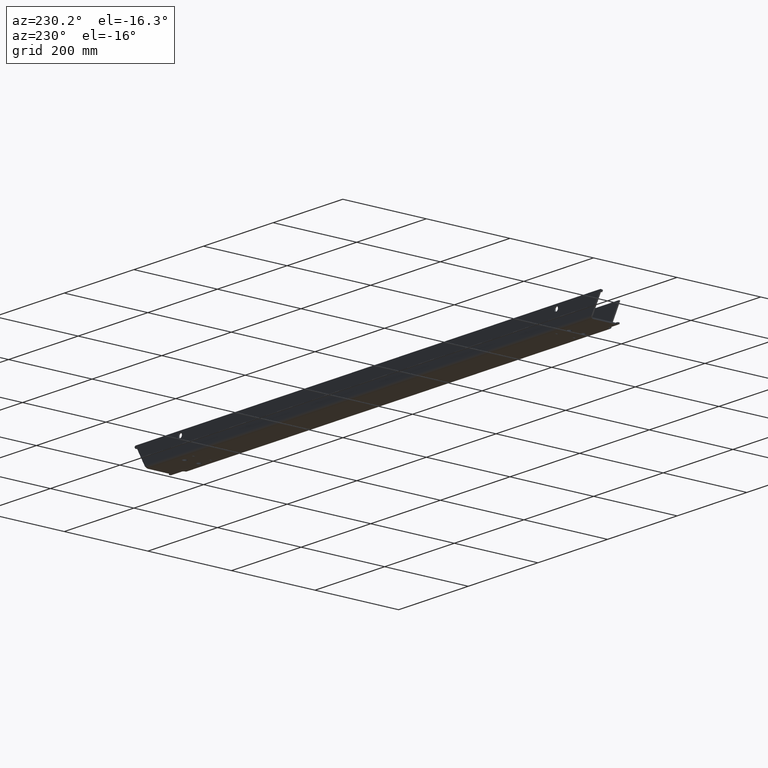
[diagram: clean part render]
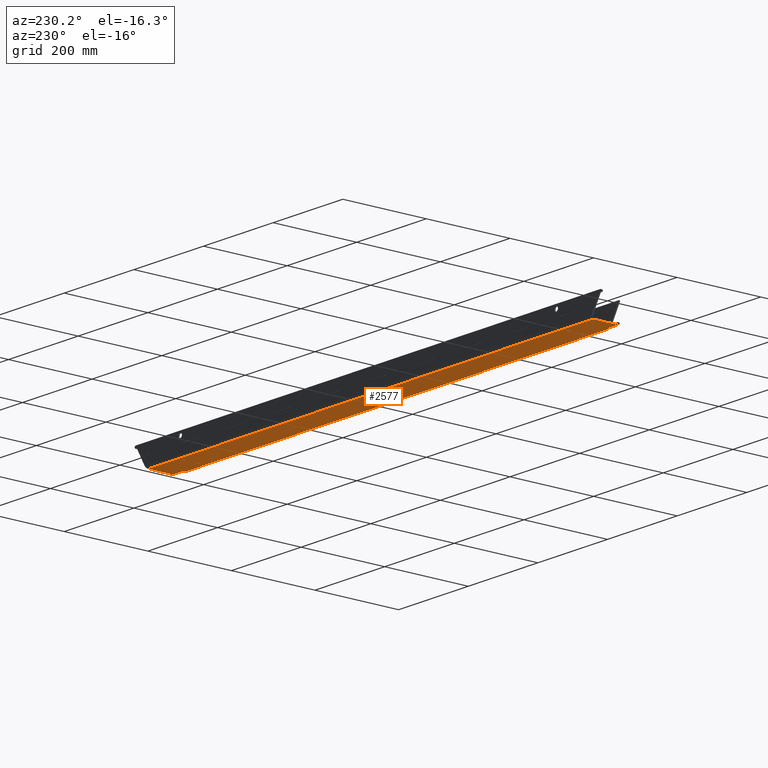
[diagram: same view with one face highlighted and labeled with its STEP entity id]
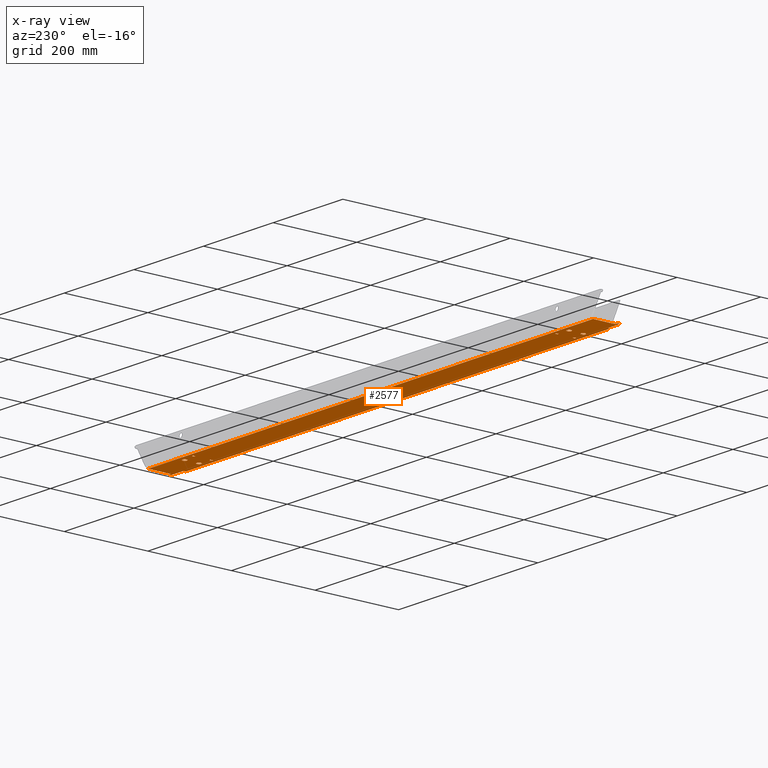
[diagram: x-ray of the same camera — body ghosted, the highlighted face saturated]
A machine part, auxiliary view. The second image highlights one B-rep face of the part: STEP entity #2577.
The next image is the same camera in x-ray: the body ghosted, the highlighted face saturated — about 0% of this face is hidden behind the body in this view.
In plain terms, the highlighted planar face has unit normal (-0, 0, 1).
Its self-contained STEP definition (entity closure, byte-faithful):
#1 = LINE ( 'NONE', #1543, #1769 ) ;
#8 = EDGE_CURVE ( 'NONE', #581, #631, #318, .T. ) ;
#9 = LINE ( 'NONE', #2284, #2249 ) ;
#10 = DIRECTION ( 'NONE',  ( 1.000000000000000000, 0.000000000000000000, 0.000000000000000000 ) ) ;
#15 = CARTESIAN_POINT ( 'NONE',  ( 644.8674066218874259, -1093.805262667903662, -1260.499999999999773 ) ) ;
#20 = EDGE_LOOP ( 'NONE', ( #1880, #913, #72, #481 ) ) ;
#26 = VERTEX_POINT ( 'NONE', #2002 ) ;
#36 = LINE ( 'NONE', #51, #2113 ) ;
#39 = LINE ( 'NONE', #1428, #812 ) ;
#44 = EDGE_CURVE ( 'NONE', #1718, #2247, #978, .T. ) ;
#51 = CARTESIAN_POINT ( 'NONE',  ( 1216.949570326560661, -1163.805262667903662, -1260.499999999999773 ) ) ;
#55 = CARTESIAN_POINT ( 'NONE',  ( 608.4639947775447126, -1163.805262667903662, -1260.499999999999773 ) ) ;
#59 = EDGE_CURVE ( 'NONE', #400, #364, #2617, .T. ) ;
#60 = VERTEX_POINT ( 'NONE', #2172 ) ;
#68 = DIRECTION ( 'NONE',  ( -1.000000000000000000, -0.000000000000000000, -0.000000000000000000 ) ) ;
#72 = ORIENTED_EDGE ( 'NONE', *, *, #1324, .F. ) ;
#89 = AXIS2_PLACEMENT_3D ( 'NONE', #290, #1711, #1130 ) ;
#96 = LINE ( 'NONE', #1332, #2314 ) ;
#103 = VERTEX_POINT ( 'NONE', #1007 ) ;
#141 = DIRECTION ( 'NONE',  ( 1.000000000000000000, 0.000000000000000000, 0.000000000000000000 ) ) ;
#151 = CARTESIAN_POINT ( 'NONE',  ( 1090.972523324353915, -1107.805262667903889, -1260.499999999999773 ) ) ;
#152 = VERTEX_POINT ( 'NONE', #2502 ) ;
#153 = AXIS2_PLACEMENT_3D ( 'NONE', #962, #505, #2403 ) ;
#154 = DIRECTION ( 'NONE',  ( 1.000000000000000000, 0.000000000000000000, 0.000000000000000000 ) ) ;
#164 = DIRECTION ( 'NONE',  ( -0.000000000000000000, 0.000000000000000000, 1.000000000000000000 ) ) ;
#181 = DIRECTION ( 'NONE',  ( 0.000000000000000000, 1.000000000000000000, -0.000000000000000000 ) ) ;
#188 = VERTEX_POINT ( 'NONE', #1223 ) ;
#189 = LINE ( 'NONE', #1266, #1389 ) ;
#190 = CARTESIAN_POINT ( 'NONE',  ( -638.8674066218875396, -1153.805262667903662, -1260.499999999999773 ) ) ;
#194 = VERTEX_POINT ( 'NONE', #1196 ) ;
#205 = EDGE_CURVE ( 'NONE', #2174, #2145, #39, .T. ) ;
#214 = CARTESIAN_POINT ( 'NONE',  ( -552.1231010869422562, -1148.805262667896613, -1260.499999999999545 ) ) ;
#221 = VERTEX_POINT ( 'NONE', #2443 ) ;
#225 = DIRECTION ( 'NONE',  ( -0.000000000000000000, 0.000000000000000000, 1.000000000000000000 ) ) ;
#249 = ORIENTED_EDGE ( 'NONE', *, *, #448, .T. ) ;
#259 = EDGE_CURVE ( 'NONE', #1335, #1607, #96, .T. ) ;
#265 = DIRECTION ( 'NONE',  ( -1.000000000000000000, -0.000000000000000000, -0.000000000000000000 ) ) ;
#289 = VECTOR ( 'NONE', #1996, 1000.000000000000000 ) ;
#290 = CARTESIAN_POINT ( 'NONE',  ( -552.1231010869422562, -1114.805262667903662, -1260.499999999999545 ) ) ;
#291 = VERTEX_POINT ( 'NONE', #1955 ) ;
#318 = CIRCLE ( 'NONE', #153, 5.249999999999976907 ) ;
#345 = VERTEX_POINT ( 'NONE', #1347 ) ;
#351 = VECTOR ( 'NONE', #359, 1000.000000000000000 ) ;
#358 = EDGE_CURVE ( 'NONE', #726, #103, #467, .T. ) ;
#359 = DIRECTION ( 'NONE',  ( 0.000000000000000000, 1.000000000000000000, -0.000000000000000000 ) ) ;
#364 = VERTEX_POINT ( 'NONE', #1118 ) ;
#395 = EDGE_CURVE ( 'NONE', #2187, #1278, #501, .T. ) ;
#400 = VERTEX_POINT ( 'NONE', #1596 ) ;
#408 = ORIENTED_EDGE ( 'NONE', *, *, #8, .T. ) ;
#413 = ORIENTED_EDGE ( 'NONE', *, *, #2663, .F. ) ;
#419 = VECTOR ( 'NONE', #2188, 1000.000000000000000 ) ;
#423 = CIRCLE ( 'NONE', #2073, 5.249999999999976907 ) ;
#434 = FACE_BOUND ( 'NONE', #1173, .T. ) ;
#447 = EDGE_LOOP ( 'NONE', ( #937, #1094 ) ) ;
#448 = EDGE_CURVE ( 'NONE', #2145, #60, #2425, .T. ) ;
#452 = VERTEX_POINT ( 'NONE', #2438 ) ;
#453 = VECTOR ( 'NONE', #1038, 1000.000000000000000 ) ;
#467 = LINE ( 'NONE', #1306, #2618 ) ;
#472 = CARTESIAN_POINT ( 'NONE',  ( 519.9000000000004320, -1155.805262667903889, -1260.499999999999773 ) ) ;
#477 = AXIS2_PLACEMENT_3D ( 'NONE', #1188, #1407, #1622 ) ;
#481 = ORIENTED_EDGE ( 'NONE', *, *, #2623, .F. ) ;
#490 = CARTESIAN_POINT ( 'NONE',  ( 643.8674066218874259, -1158.805262667903435, -1260.499999999999773 ) ) ;
#492 = EDGE_CURVE ( 'NONE', #2116, #2351, #1488, .T. ) ;
#497 = LINE ( 'NONE', #2311, #1049 ) ;
#500 = CARTESIAN_POINT ( 'NONE',  ( -613.4639947775447126, -1163.805262667903662, -1260.499999999999773 ) ) ;
#501 = CIRCLE ( 'NONE', #1207, 5.249999999999976907 ) ;
#505 = DIRECTION ( 'NONE',  ( -0.000000000000000000, 0.000000000000000000, 1.000000000000000000 ) ) ;
#523 = VECTOR ( 'NONE', #748, 1000.000000000000000 ) ;
#525 = ORIENTED_EDGE ( 'NONE', *, *, #492, .F. ) ;
#542 = DIRECTION ( 'NONE',  ( -0.000000000000000000, 0.000000000000000000, 1.000000000000000000 ) ) ;
#549 = LINE ( 'NONE', #566, #351 ) ;
#566 = CARTESIAN_POINT ( 'NONE',  ( 638.8674066218876533, -1093.805262667903662, -1260.499999999999773 ) ) ;
#568 = CIRCLE ( 'NONE', #89, 5.249999999999976907 ) ;
#569 = CARTESIAN_POINT ( 'NONE',  ( -519.9000000000004320, -1113.805262667903662, -1260.499999999999773 ) ) ;
#572 = CARTESIAN_POINT ( 'NONE',  ( -1284.683459398313516, -1099.805262667903662, -1260.499999999999773 ) ) ;
#581 = VERTEX_POINT ( 'NONE', #1652 ) ;
#586 = EDGE_CURVE ( 'NONE', #940, #2004, #1, .T. ) ;
#587 = CARTESIAN_POINT ( 'NONE',  ( -552.1231010869422562, -1148.805262667896613, -1260.499999999999545 ) ) ;
#588 = VECTOR ( 'NONE', #141, 1000.000000000000000 ) ;
#598 = FACE_BOUND ( 'NONE', #1937, .T. ) ;
#605 = CARTESIAN_POINT ( 'NONE',  ( 1090.972523324353915, -1107.805262667903889, -1260.499999999999773 ) ) ;
#607 = CIRCLE ( 'NONE', #742, 1.000000000000000888 ) ;
#631 = VERTEX_POINT ( 'NONE', #2126 ) ;
#643 = FACE_BOUND ( 'NONE', #648, .T. ) ;
#644 = VERTEX_POINT ( 'NONE', #55 ) ;
#647 = CARTESIAN_POINT ( 'NONE',  ( -546.8731010869423699, -1148.805262667896613, -1260.499999999999545 ) ) ;
#648 = EDGE_LOOP ( 'NONE', ( #525, #792, #2655, #1326 ) ) ;
#649 = AXIS2_PLACEMENT_3D ( 'NONE', #214, #225, #10 ) ;
#652 = LINE ( 'NONE', #15, #2681 ) ;
#661 = ORIENTED_EDGE ( 'NONE', *, *, #395, .T. ) ;
#666 = DIRECTION ( 'NONE',  ( 1.000000000000000000, 0.000000000000000000, 0.000000000000000000 ) ) ;
#675 = VERTEX_POINT ( 'NONE', #930 ) ;
#682 = EDGE_LOOP ( 'NONE', ( #408, #749 ) ) ;
#683 = VECTOR ( 'NONE', #1796, 1000.000000000000000 ) ;
#689 = EDGE_CURVE ( 'NONE', #1982, #2174, #1530, .T. ) ;
#713 = EDGE_CURVE ( 'NONE', #194, #726, #1814, .T. ) ;
#717 = CARTESIAN_POINT ( 'NONE',  ( 613.4639947775447126, -1158.805262667903207, -1260.499999999999773 ) ) ;
#726 = VERTEX_POINT ( 'NONE', #2152 ) ;
#740 = ORIENTED_EDGE ( 'NONE', *, *, #1368, .F. ) ;
#742 = AXIS2_PLACEMENT_3D ( 'NONE', #1991, #1374, #1817 ) ;
#745 = CARTESIAN_POINT ( 'NONE',  ( 523.1000000000004775, -1093.805262667903662, -1260.499999999999773 ) ) ;
#748 = DIRECTION ( 'NONE',  ( -0.000000000000000000, -1.000000000000000000, 0.000000000000000000 ) ) ;
#749 = ORIENTED_EDGE ( 'NONE', *, *, #1339, .T. ) ;
#757 = DIRECTION ( 'NONE',  ( 1.000000000000000000, 0.000000000000000000, 0.000000000000000000 ) ) ;
#762 = EDGE_LOOP ( 'NONE', ( #1658, #2027, #1101, #1668 ) ) ;
#767 = EDGE_CURVE ( 'NONE', #2330, #644, #1729, .T. ) ;
#769 = DIRECTION ( 'NONE',  ( 1.000000000000000000, 0.000000000000000000, 0.000000000000000000 ) ) ;
#772 = EDGE_CURVE ( 'NONE', #1486, #452, #1899, .T. ) ;
#785 = DIRECTION ( 'NONE',  ( 1.000000000000000000, 0.000000000000000000, 0.000000000000000000 ) ) ;
#788 = CARTESIAN_POINT ( 'NONE',  ( 1090.972523324353915, -1155.805262667903889, -1260.499999999999773 ) ) ;
#792 = ORIENTED_EDGE ( 'NONE', *, *, #895, .F. ) ;
#799 = CARTESIAN_POINT ( 'NONE',  ( 519.9000000000004320, -1093.805262667903662, -1260.499999999999773 ) ) ;
#801 = DIRECTION ( 'NONE',  ( 0.000000000000000000, 1.000000000000000000, -0.000000000000000000 ) ) ;
#807 = DIRECTION ( 'NONE',  ( -0.000000000000000000, 0.000000000000000000, 1.000000000000000000 ) ) ;
#812 = VECTOR ( 'NONE', #2040, 1000.000000000000000 ) ;
#813 = DIRECTION ( 'NONE',  ( 1.000000000000000000, 0.000000000000000000, 0.000000000000000000 ) ) ;
#817 = PLANE ( 'NONE',  #1575 ) ;
#832 = DIRECTION ( 'NONE',  ( -1.000000000000000000, -0.000000000000000000, -0.000000000000000000 ) ) ;
#840 = FACE_BOUND ( 'NONE', #447, .T. ) ;
#845 = EDGE_CURVE ( 'NONE', #152, #221, #1204, .T. ) ;
#878 = DIRECTION ( 'NONE',  ( 0.000000000000000000, 1.000000000000000000, -0.000000000000000000 ) ) ;
#881 = ORIENTED_EDGE ( 'NONE', *, *, #1110, .T. ) ;
#884 = EDGE_CURVE ( 'NONE', #2247, #345, #2021, .T. ) ;
#894 = ORIENTED_EDGE ( 'NONE', *, *, #933, .T. ) ;
#895 = EDGE_CURVE ( 'NONE', #291, #2116, #2427, .T. ) ;
#903 = DIRECTION ( 'NONE',  ( 1.000000000000000000, 0.000000000000000000, 0.000000000000000000 ) ) ;
#913 = ORIENTED_EDGE ( 'NONE', *, *, #259, .F. ) ;
#915 = AXIS2_PLACEMENT_3D ( 'NONE', #2013, #2656, #813 ) ;
#930 = CARTESIAN_POINT ( 'NONE',  ( -644.8674066218873122, -1157.805262667903662, -1260.499999999999773 ) ) ;
#933 = EDGE_CURVE ( 'NONE', #1471, #2330, #189, .T. ) ;
#937 = ORIENTED_EDGE ( 'NONE', *, *, #2362, .T. ) ;
#940 = VERTEX_POINT ( 'NONE', #2070 ) ;
#944 = ORIENTED_EDGE ( 'NONE', *, *, #1618, .T. ) ;
#952 = CARTESIAN_POINT ( 'NONE',  ( -557.3731010869422562, -1148.805262667896613, -1260.499999999999545 ) ) ;
#962 = CARTESIAN_POINT ( 'NONE',  ( 552.1231010869422562, -1148.805262667896613, -1260.499999999999545 ) ) ;
#963 = VECTOR ( 'NONE', #181, 1000.000000000000000 ) ;
#969 = LINE ( 'NONE', #2593, #419 ) ;
#973 = DIRECTION ( 'NONE',  ( 1.000000000000000000, 0.000000000000000000, 0.000000000000000000 ) ) ;
#974 = CARTESIAN_POINT ( 'NONE',  ( 1090.972523324353915, -1113.805262667903662, -1260.499999999999773 ) ) ;
#977 = LINE ( 'NONE', #605, #1042 ) ;
#978 = LINE ( 'NONE', #745, #1755 ) ;
#992 = LINE ( 'NONE', #1841, #1224 ) ;
#1000 = DIRECTION ( 'NONE',  ( 1.000000000000000000, 0.000000000000000000, 0.000000000000000000 ) ) ;
#1001 = CARTESIAN_POINT ( 'NONE',  ( 519.9000000000004320, -1107.805262667903889, -1260.499999999999773 ) ) ;
#1004 = CIRCLE ( 'NONE', #1343, 1.000000000000000888 ) ;
#1005 = LINE ( 'NONE', #788, #1398 ) ;
#1007 = CARTESIAN_POINT ( 'NONE',  ( -643.8674066218874259, -1158.805262667903435, -1260.499999999999773 ) ) ;
#1022 = FACE_OUTER_BOUND ( 'NONE', #2433, .T. ) ;
#1028 = EDGE_CURVE ( 'NONE', #2004, #400, #9, .T. ) ;
#1038 = DIRECTION ( 'NONE',  ( 1.000000000000000000, 0.000000000000000000, 0.000000000000000000 ) ) ;
#1042 = VECTOR ( 'NONE', #1588, 1000.000000000000000 ) ;
#1049 = VECTOR ( 'NONE', #2525, 1000.000000000000000 ) ;
#1060 = DIRECTION ( 'NONE',  ( 0.000000000000000000, 1.000000000000000000, -0.000000000000000000 ) ) ;
#1085 = CIRCLE ( 'NONE', #915, 1.000000000000000888 ) ;
#1094 = ORIENTED_EDGE ( 'NONE', *, *, #1566, .T. ) ;
#1101 = ORIENTED_EDGE ( 'NONE', *, *, #59, .F. ) ;
#1110 = EDGE_CURVE ( 'NONE', #644, #194, #36, .T. ) ;
#1111 = ORIENTED_EDGE ( 'NONE', *, *, #1601, .F. ) ;
#1118 = CARTESIAN_POINT ( 'NONE',  ( 523.1000000000004775, -1149.805262667903889, -1260.499999999999773 ) ) ;
#1123 = VECTOR ( 'NONE', #903, 1000.000000000000000 ) ;
#1130 = DIRECTION ( 'NONE',  ( 1.000000000000000000, 0.000000000000000000, 0.000000000000000000 ) ) ;
#1139 = CIRCLE ( 'NONE', #477, 1.000000000000000888 ) ;
#1171 = CARTESIAN_POINT ( 'NONE',  ( -546.8731010869423699, -1114.805262667903662, -1260.499999999999545 ) ) ;
#1173 = EDGE_LOOP ( 'NONE', ( #1825, #1404, #1111, #2333 ) ) ;
#1177 = ORIENTED_EDGE ( 'NONE', *, *, #2063, .T. ) ;
#1188 = CARTESIAN_POINT ( 'NONE',  ( 643.8674066218874259, -1154.805262667903435, -1260.499999999999545 ) ) ;
#1194 = VERTEX_POINT ( 'NONE', #569 ) ;
#1195 = DIRECTION ( 'NONE',  ( -1.000000000000000000, -0.000000000000000000, -0.000000000000000000 ) ) ;
#1196 = CARTESIAN_POINT ( 'NONE',  ( -608.4639947775447126, -1163.805262667903662, -1260.499999999999773 ) ) ;
#1204 = LINE ( 'NONE', #2439, #289 ) ;
#1207 = AXIS2_PLACEMENT_3D ( 'NONE', #587, #542, #973 ) ;
#1210 = VERTEX_POINT ( 'NONE', #1171 ) ;
#1211 = DIRECTION ( 'NONE',  ( -0.000000000000000000, -0.000000000000000000, 1.000000000000000000 ) ) ;
#1218 = CARTESIAN_POINT ( 'NONE',  ( -638.8674066218875396, -1099.805262667903662, -1260.499999999999773 ) ) ;
#1223 = CARTESIAN_POINT ( 'NONE',  ( -519.9000000000004320, -1107.805262667903889, -1260.499999999999773 ) ) ;
#1224 = VECTOR ( 'NONE', #801, 1000.000000000000000 ) ;
#1233 = CARTESIAN_POINT ( 'NONE',  ( 523.1000000000004775, -1113.805262667903662, -1260.499999999999773 ) ) ;
#1237 = EDGE_CURVE ( 'NONE', #1982, #1239, #607, .T. ) ;
#1239 = VERTEX_POINT ( 'NONE', #2620 ) ;
#1241 = ORIENTED_EDGE ( 'NONE', *, *, #689, .T. ) ;
#1247 = EDGE_CURVE ( 'NONE', #2351, #1337, #969, .T. ) ;
#1266 = CARTESIAN_POINT ( 'NONE',  ( 1090.972523324353915, -1158.805262667903435, -1260.499999999999773 ) ) ;
#1273 = ORIENTED_EDGE ( 'NONE', *, *, #358, .T. ) ;
#1278 = VERTEX_POINT ( 'NONE', #952 ) ;
#1283 = CARTESIAN_POINT ( 'NONE',  ( 552.1231010869422562, -1148.805262667896613, -1260.499999999999545 ) ) ;
#1285 = VECTOR ( 'NONE', #1624, 1000.000000000000000 ) ;
#1306 = CARTESIAN_POINT ( 'NONE',  ( 1090.972523324353915, -1158.805262667903435, -1260.499999999999773 ) ) ;
#1309 = DIRECTION ( 'NONE',  ( -0.000000000000000000, 0.000000000000000000, 1.000000000000000000 ) ) ;
#1316 = DIRECTION ( 'NONE',  ( -1.000000000000000000, 0.000000000000000000, -0.000000000000000000 ) ) ;
#1324 = EDGE_CURVE ( 'NONE', #1194, #1335, #2518, .T. ) ;
#1326 = ORIENTED_EDGE ( 'NONE', *, *, #1247, .F. ) ;
#1332 = CARTESIAN_POINT ( 'NONE',  ( -523.1000000000005912, -1093.805262667903662, -1260.499999999999773 ) ) ;
#1333 = DIRECTION ( 'NONE',  ( 1.000000000000000000, 0.000000000000000000, 0.000000000000000000 ) ) ;
#1335 = VERTEX_POINT ( 'NONE', #1903 ) ;
#1337 = VERTEX_POINT ( 'NONE', #2650 ) ;
#1339 = EDGE_CURVE ( 'NONE', #631, #581, #2288, .T. ) ;
#1343 = AXIS2_PLACEMENT_3D ( 'NONE', #2115, #1211, #2276 ) ;
#1347 = CARTESIAN_POINT ( 'NONE',  ( 519.9000000000004320, -1113.805262667903662, -1260.499999999999773 ) ) ;
#1368 = EDGE_CURVE ( 'NONE', #675, #103, #1004, .T. ) ;
#1374 = DIRECTION ( 'NONE',  ( -0.000000000000000000, -0.000000000000000000, 1.000000000000000000 ) ) ;
#1389 = VECTOR ( 'NONE', #832, 1000.000000000000000 ) ;
#1398 = VECTOR ( 'NONE', #1195, 1000.000000000000000 ) ;
#1404 = ORIENTED_EDGE ( 'NONE', *, *, #44, .F. ) ;
#1407 = DIRECTION ( 'NONE',  ( 0.000000000000000000, 0.000000000000000000, -1.000000000000000000 ) ) ;
#1428 = CARTESIAN_POINT ( 'NONE',  ( -638.8674066218875396, -1093.805262667903662, -1260.499999999999773 ) ) ;
#1433 = ORIENTED_EDGE ( 'NONE', *, *, #767, .T. ) ;
#1444 = VERTEX_POINT ( 'NONE', #2546 ) ;
#1445 = CARTESIAN_POINT ( 'NONE',  ( -523.1000000000005912, -1093.805262667903662, -1260.499999999999773 ) ) ;
#1450 = CARTESIAN_POINT ( 'NONE',  ( 523.1000000000004775, -1107.805262667903889, -1260.499999999999773 ) ) ;
#1471 = VERTEX_POINT ( 'NONE', #490 ) ;
#1481 = ORIENTED_EDGE ( 'NONE', *, *, #772, .T. ) ;
#1486 = VERTEX_POINT ( 'NONE', #1984 ) ;
#1488 = LINE ( 'NONE', #2255, #453 ) ;
#1530 = LINE ( 'NONE', #2168, #1123 ) ;
#1533 = ORIENTED_EDGE ( 'NONE', *, *, #2267, .T. ) ;
#1543 = CARTESIAN_POINT ( 'NONE',  ( 1090.972523324353915, -1155.805262667903889, -1260.499999999999773 ) ) ;
#1544 = CARTESIAN_POINT ( 'NONE',  ( 644.8674066218873122, -1154.805262667903435, -1260.499999999999773 ) ) ;
#1566 = EDGE_CURVE ( 'NONE', #1444, #1210, #423, .T. ) ;
#1575 = AXIS2_PLACEMENT_3D ( 'NONE', #1667, #807, #1635 ) ;
#1588 = DIRECTION ( 'NONE',  ( 1.000000000000000000, 0.000000000000000000, 0.000000000000000000 ) ) ;
#1596 = CARTESIAN_POINT ( 'NONE',  ( 519.9000000000004320, -1149.805262667903889, -1260.499999999999773 ) ) ;
#1601 = EDGE_CURVE ( 'NONE', #2077, #1718, #977, .T. ) ;
#1603 = CARTESIAN_POINT ( 'NONE',  ( -519.9000000000004320, -1093.805262667903662, -1260.499999999999773 ) ) ;
#1607 = VERTEX_POINT ( 'NONE', #2256 ) ;
#1610 = CARTESIAN_POINT ( 'NONE',  ( 613.4639947775447126, -1163.805262667903435, -1260.499999999999773 ) ) ;
#1618 = EDGE_CURVE ( 'NONE', #675, #1239, #992, .T. ) ;
#1622 = DIRECTION ( 'NONE',  ( 1.000000000000000000, 0.000000000000000000, 0.000000000000000000 ) ) ;
#1624 = DIRECTION ( 'NONE',  ( 1.000000000000000000, -0.000000000000000000, 0.000000000000000000 ) ) ;
#1634 = DIRECTION ( 'NONE',  ( -0.000000000000000000, 0.000000000000000000, 1.000000000000000000 ) ) ;
#1635 = DIRECTION ( 'NONE',  ( 1.000000000000000000, 0.000000000000000000, 0.000000000000000000 ) ) ;
#1645 = EDGE_CURVE ( 'NONE', #1337, #291, #1005, .T. ) ;
#1652 = CARTESIAN_POINT ( 'NONE',  ( 557.3731010869422562, -1148.805262667896613, -1260.499999999999545 ) ) ;
#1658 = ORIENTED_EDGE ( 'NONE', *, *, #586, .F. ) ;
#1667 = CARTESIAN_POINT ( 'NONE',  ( 1090.972523324353915, -1093.805262667903662, -1260.499999999999773 ) ) ;
#1668 = ORIENTED_EDGE ( 'NONE', *, *, #1028, .F. ) ;
#1670 = EDGE_CURVE ( 'NONE', #26, #1471, #1085, .T. ) ;
#1683 = ORIENTED_EDGE ( 'NONE', *, *, #1745, .F. ) ;
#1711 = DIRECTION ( 'NONE',  ( -0.000000000000000000, 0.000000000000000000, 1.000000000000000000 ) ) ;
#1718 = VERTEX_POINT ( 'NONE', #1450 ) ;
#1729 = CIRCLE ( 'NONE', #2416, 5.000000000000004441 ) ;
#1735 = CIRCLE ( 'NONE', #649, 5.249999999999976907 ) ;
#1745 = EDGE_CURVE ( 'NONE', #26, #1922, #652, .T. ) ;
#1754 = LINE ( 'NONE', #799, #963 ) ;
#1755 = VECTOR ( 'NONE', #2155, 1000.000000000000000 ) ;
#1768 = ORIENTED_EDGE ( 'NONE', *, *, #845, .F. ) ;
#1769 = VECTOR ( 'NONE', #68, 1000.000000000000000 ) ;
#1781 = CARTESIAN_POINT ( 'NONE',  ( 552.1231010869422562, -1114.805262667903662, -1260.499999999999545 ) ) ;
#1783 = LINE ( 'NONE', #151, #2335 ) ;
#1790 = EDGE_LOOP ( 'NONE', ( #1481, #1177 ) ) ;
#1796 = DIRECTION ( 'NONE',  ( -1.000000000000000000, -0.000000000000000000, -0.000000000000000000 ) ) ;
#1799 = DIRECTION ( 'NONE',  ( -0.000000000000000000, 0.000000000000000000, 1.000000000000000000 ) ) ;
#1800 = CARTESIAN_POINT ( 'NONE',  ( 1090.972523324353915, -1149.805262667903889, -1260.499999999999773 ) ) ;
#1814 = CIRCLE ( 'NONE', #2495, 5.000000000000004441 ) ;
#1817 = DIRECTION ( 'NONE',  ( -1.000000000000000000, 0.000000000000000000, 0.000000000000000000 ) ) ;
#1821 = VECTOR ( 'NONE', #2088, 1000.000000000000000 ) ;
#1825 = ORIENTED_EDGE ( 'NONE', *, *, #884, .F. ) ;
#1839 = DIRECTION ( 'NONE',  ( -0.000000000000000000, 0.000000000000000000, 1.000000000000000000 ) ) ;
#1841 = CARTESIAN_POINT ( 'NONE',  ( -644.8674066218873122, -1093.805262667903662, -1260.499999999999773 ) ) ;
#1844 = FACE_BOUND ( 'NONE', #20, .T. ) ;
#1855 = ORIENTED_EDGE ( 'NONE', *, *, #2494, .T. ) ;
#1880 = ORIENTED_EDGE ( 'NONE', *, *, #2024, .F. ) ;
#1899 = CIRCLE ( 'NONE', #1985, 5.249999999999976907 ) ;
#1903 = CARTESIAN_POINT ( 'NONE',  ( -523.1000000000005912, -1113.805262667903662, -1260.499999999999773 ) ) ;
#1922 = VERTEX_POINT ( 'NONE', #1544 ) ;
#1937 = EDGE_LOOP ( 'NONE', ( #661, #1533 ) ) ;
#1952 = CARTESIAN_POINT ( 'NONE',  ( -519.9000000000004320, -1149.805262667903889, -1260.499999999999773 ) ) ;
#1955 = CARTESIAN_POINT ( 'NONE',  ( -523.1000000000005912, -1155.805262667903889, -1260.499999999999773 ) ) ;
#1965 = ORIENTED_EDGE ( 'NONE', *, *, #1670, .T. ) ;
#1980 = DIRECTION ( 'NONE',  ( -0.000000000000000000, 0.000000000000000000, 1.000000000000000000 ) ) ;
#1982 = VERTEX_POINT ( 'NONE', #2541 ) ;
#1984 = CARTESIAN_POINT ( 'NONE',  ( 557.3731010869422562, -1114.805262667903662, -1260.499999999999545 ) ) ;
#1985 = AXIS2_PLACEMENT_3D ( 'NONE', #1781, #164, #769 ) ;
#1991 = CARTESIAN_POINT ( 'NONE',  ( -643.8674066218874259, -1154.805262667903435, -1260.499999999999545 ) ) ;
#1996 = DIRECTION ( 'NONE',  ( -1.000000000000000000, -0.000000000000000000, -0.000000000000000000 ) ) ;
#2002 = CARTESIAN_POINT ( 'NONE',  ( 644.8674066218874259, -1157.805262667903662, -1260.499999999999773 ) ) ;
#2004 = VERTEX_POINT ( 'NONE', #472 ) ;
#2013 = CARTESIAN_POINT ( 'NONE',  ( 643.8674066218874259, -1157.805262667903662, -1260.499999999999545 ) ) ;
#2016 = EDGE_CURVE ( 'NONE', #345, #2077, #1754, .T. ) ;
#2021 = LINE ( 'NONE', #974, #683 ) ;
#2024 = EDGE_CURVE ( 'NONE', #1607, #188, #1783, .T. ) ;
#2027 = ORIENTED_EDGE ( 'NONE', *, *, #2343, .F. ) ;
#2037 = CIRCLE ( 'NONE', #2291, 5.249999999999976907 ) ;
#2040 = DIRECTION ( 'NONE',  ( 0.000000000000000000, 1.000000000000000000, -0.000000000000000000 ) ) ;
#2063 = EDGE_CURVE ( 'NONE', #452, #1486, #2037, .T. ) ;
#2070 = CARTESIAN_POINT ( 'NONE',  ( 523.1000000000004775, -1155.805262667903889, -1260.499999999999773 ) ) ;
#2073 = AXIS2_PLACEMENT_3D ( 'NONE', #2531, #1799, #154 ) ;
#2077 = VERTEX_POINT ( 'NONE', #1001 ) ;
#2088 = DIRECTION ( 'NONE',  ( -1.000000000000000000, -0.000000000000000000, -0.000000000000000000 ) ) ;
#2090 = FACE_BOUND ( 'NONE', #682, .T. ) ;
#2113 = VECTOR ( 'NONE', #1316, 1000.000000000000000 ) ;
#2115 = CARTESIAN_POINT ( 'NONE',  ( -643.8674066218874259, -1157.805262667903662, -1260.499999999999545 ) ) ;
#2116 = VERTEX_POINT ( 'NONE', #2412 ) ;
#2126 = CARTESIAN_POINT ( 'NONE',  ( 546.8731010869423699, -1148.805262667896613, -1260.499999999999545 ) ) ;
#2145 = VERTEX_POINT ( 'NONE', #1218 ) ;
#2152 = CARTESIAN_POINT ( 'NONE',  ( -613.4639947775445989, -1158.805262667903435, -1260.499999999999773 ) ) ;
#2155 = DIRECTION ( 'NONE',  ( -0.000000000000000000, -1.000000000000000000, 0.000000000000000000 ) ) ;
#2168 = CARTESIAN_POINT ( 'NONE',  ( 1090.972523324353915, -1153.805262667903662, -1260.499999999999773 ) ) ;
#2172 = CARTESIAN_POINT ( 'NONE',  ( 638.8674066218876533, -1099.805262667903662, -1260.499999999999773 ) ) ;
#2174 = VERTEX_POINT ( 'NONE', #190 ) ;
#2177 = ORIENTED_EDGE ( 'NONE', *, *, #713, .T. ) ;
#2187 = VERTEX_POINT ( 'NONE', #647 ) ;
#2188 = DIRECTION ( 'NONE',  ( -0.000000000000000000, -1.000000000000000000, 0.000000000000000000 ) ) ;
#2247 = VERTEX_POINT ( 'NONE', #1233 ) ;
#2249 = VECTOR ( 'NONE', #1060, 1000.000000000000000 ) ;
#2255 = CARTESIAN_POINT ( 'NONE',  ( 1090.972523324353915, -1149.805262667903889, -1260.499999999999773 ) ) ;
#2256 = CARTESIAN_POINT ( 'NONE',  ( -523.1000000000003638, -1107.805262667903889, -1260.499999999999773 ) ) ;
#2262 = DIRECTION ( 'NONE',  ( 0.000000000000000000, 1.000000000000000000, -0.000000000000000000 ) ) ;
#2265 = ORIENTED_EDGE ( 'NONE', *, *, #205, .T. ) ;
#2267 = EDGE_CURVE ( 'NONE', #1278, #2187, #1735, .T. ) ;
#2276 = DIRECTION ( 'NONE',  ( -1.000000000000000000, 0.000000000000000000, 0.000000000000000000 ) ) ;
#2284 = CARTESIAN_POINT ( 'NONE',  ( 519.9000000000004320, -1093.805262667903662, -1260.499999999999773 ) ) ;
#2288 = CIRCLE ( 'NONE', #2634, 5.249999999999976907 ) ;
#2291 = AXIS2_PLACEMENT_3D ( 'NONE', #2600, #1839, #757 ) ;
#2297 = FACE_BOUND ( 'NONE', #762, .T. ) ;
#2307 = ORIENTED_EDGE ( 'NONE', *, *, #1237, .F. ) ;
#2311 = CARTESIAN_POINT ( 'NONE',  ( 523.1000000000004775, -1093.805262667903662, -1260.499999999999773 ) ) ;
#2314 = VECTOR ( 'NONE', #2327, 1000.000000000000000 ) ;
#2323 = VECTOR ( 'NONE', #2262, 1000.000000000000000 ) ;
#2327 = DIRECTION ( 'NONE',  ( 0.000000000000000000, 1.000000000000000000, -0.000000000000000000 ) ) ;
#2330 = VERTEX_POINT ( 'NONE', #717 ) ;
#2333 = ORIENTED_EDGE ( 'NONE', *, *, #2016, .F. ) ;
#2335 = VECTOR ( 'NONE', #785, 1000.000000000000000 ) ;
#2343 = EDGE_CURVE ( 'NONE', #364, #940, #497, .T. ) ;
#2351 = VERTEX_POINT ( 'NONE', #1952 ) ;
#2362 = EDGE_CURVE ( 'NONE', #1210, #1444, #568, .T. ) ;
#2403 = DIRECTION ( 'NONE',  ( 1.000000000000000000, 0.000000000000000000, 0.000000000000000000 ) ) ;
#2412 = CARTESIAN_POINT ( 'NONE',  ( -523.1000000000003638, -1149.805262667903889, -1260.499999999999773 ) ) ;
#2416 = AXIS2_PLACEMENT_3D ( 'NONE', #1610, #1980, #1000 ) ;
#2425 = LINE ( 'NONE', #572, #1285 ) ;
#2427 = LINE ( 'NONE', #1445, #2323 ) ;
#2433 = EDGE_LOOP ( 'NONE', ( #1273, #740, #944, #2307, #1241, #2265, #249, #413, #1768, #1855, #1683, #1965, #894, #1433, #881, #2177 ) ) ;
#2438 = CARTESIAN_POINT ( 'NONE',  ( 546.8731010869423699, -1114.805262667903662, -1260.499999999999545 ) ) ;
#2439 = CARTESIAN_POINT ( 'NONE',  ( 1090.972523324353915, -1153.805262667903662, -1260.499999999999773 ) ) ;
#2443 = CARTESIAN_POINT ( 'NONE',  ( 638.8674066218874259, -1153.805262667903662, -1260.499999999999773 ) ) ;
#2447 = CARTESIAN_POINT ( 'NONE',  ( 1090.972523324353915, -1113.805262667903662, -1260.499999999999773 ) ) ;
#2457 = FACE_BOUND ( 'NONE', #1790, .T. ) ;
#2494 = EDGE_CURVE ( 'NONE', #152, #1922, #1139, .T. ) ;
#2495 = AXIS2_PLACEMENT_3D ( 'NONE', #500, #1309, #1333 ) ;
#2502 = CARTESIAN_POINT ( 'NONE',  ( 643.8674066218874259, -1153.805262667903662, -1260.499999999999773 ) ) ;
#2518 = LINE ( 'NONE', #2447, #1821 ) ;
#2525 = DIRECTION ( 'NONE',  ( -0.000000000000000000, -1.000000000000000000, 0.000000000000000000 ) ) ;
#2531 = CARTESIAN_POINT ( 'NONE',  ( -552.1231010869422562, -1114.805262667903662, -1260.499999999999545 ) ) ;
#2541 = CARTESIAN_POINT ( 'NONE',  ( -643.8674066218874259, -1153.805262667903662, -1260.499999999999773 ) ) ;
#2546 = CARTESIAN_POINT ( 'NONE',  ( -557.3731010869422562, -1114.805262667903662, -1260.499999999999545 ) ) ;
#2577 = ADVANCED_FACE ( 'NONE', ( #1022, #840, #598, #2457, #2090, #643, #1844, #2297, #434 ), #817, .F. ) ;
#2593 = CARTESIAN_POINT ( 'NONE',  ( -519.9000000000004320, -1093.805262667903662, -1260.499999999999773 ) ) ;
#2600 = CARTESIAN_POINT ( 'NONE',  ( 552.1231010869422562, -1114.805262667903662, -1260.499999999999545 ) ) ;
#2617 = LINE ( 'NONE', #1800, #588 ) ;
#2618 = VECTOR ( 'NONE', #265, 1000.000000000000000 ) ;
#2620 = CARTESIAN_POINT ( 'NONE',  ( -644.8674066218873122, -1154.805262667903435, -1260.499999999999773 ) ) ;
#2623 = EDGE_CURVE ( 'NONE', #188, #1194, #2632, .T. ) ;
#2632 = LINE ( 'NONE', #1603, #523 ) ;
#2634 = AXIS2_PLACEMENT_3D ( 'NONE', #1283, #1634, #666 ) ;
#2650 = CARTESIAN_POINT ( 'NONE',  ( -519.9000000000004320, -1155.805262667903889, -1260.499999999999773 ) ) ;
#2655 = ORIENTED_EDGE ( 'NONE', *, *, #1645, .F. ) ;
#2656 = DIRECTION ( 'NONE',  ( 0.000000000000000000, 0.000000000000000000, -1.000000000000000000 ) ) ;
#2663 = EDGE_CURVE ( 'NONE', #221, #60, #549, .T. ) ;
#2681 = VECTOR ( 'NONE', #878, 1000.000000000000000 ) ;